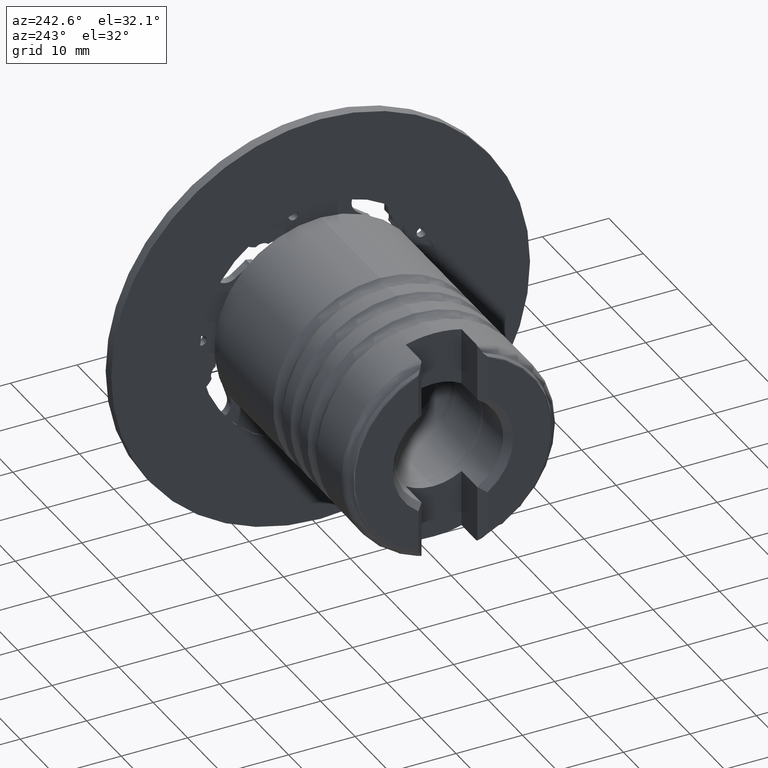
[diagram: clean part render]
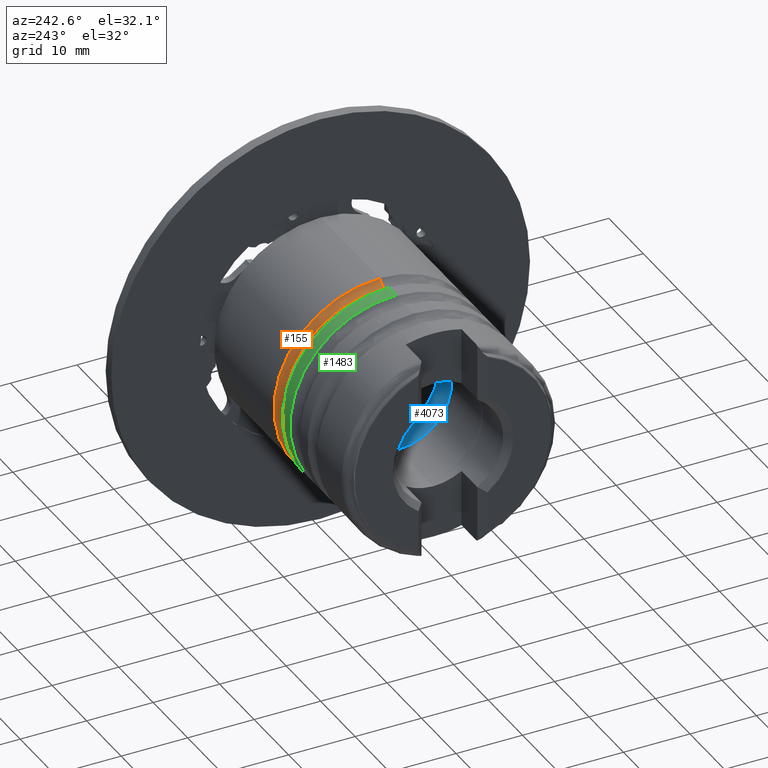
[diagram: same view with three faces highlighted in distinct colors, each labeled with its STEP entity id]
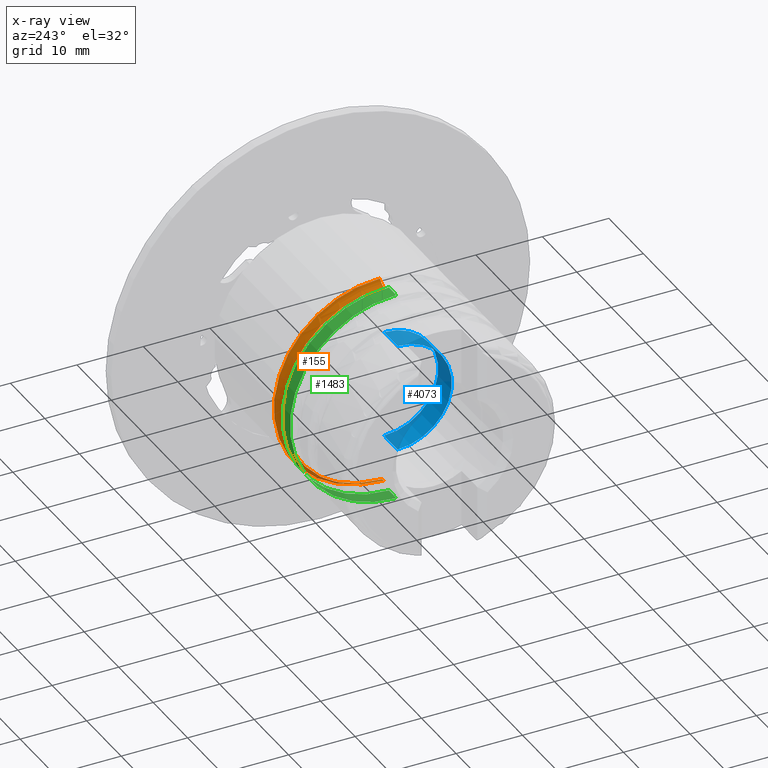
[diagram: x-ray of the same camera — body ghosted, the three highlighted faces saturated]
A machine part, auxiliary view with three faces highlighted in distinct colors.
The next image is the same camera in x-ray (body ghosted, the three faces saturated) — at least one of them is partly hidden behind the body in this view.
Their STEP definitions:

[orange] entity #155 — the highlighted toroidal blend (fillet) surface has major radius 16.75 mm and minor (blend) radius 1.5 mm.
#31 = DIRECTION ( 'NONE',  ( 0.0000000000000000000, -1.000000000000000000, 0.0000000000000000000 ) ) ;
#61 = ORIENTED_EDGE ( 'NONE', *, *, #4913, .T. ) ;
#103 = CARTESIAN_POINT ( 'NONE',  ( -19.79994866000000542, 2.051283388571816098E-15, -16.74999999999999289 ) ) ;
#155 = ADVANCED_FACE ( 'NONE', ( #1142 ), #6532, .F. ) ;
#189 = CARTESIAN_POINT ( 'NONE',  ( -18.55601876177602350, 1.948629171584465018E-15, -15.91176470588235503 ) ) ;
#216 = CARTESIAN_POINT ( 'NONE',  ( -19.79994866000000542, 0.0000000000000000000, 0.0000000000000000000 ) ) ;
#646 = ORIENTED_EDGE ( 'NONE', *, *, #1497, .F. ) ;
#975 = AXIS2_PLACEMENT_3D ( 'NONE', #216, #5013, #4440 ) ;
#1142 = FACE_OUTER_BOUND ( 'NONE', #5001, .T. ) ;
#1204 = EDGE_CURVE ( 'NONE', #3771, #2167, #2298, .T. ) ;
#1216 = CARTESIAN_POINT ( 'NONE',  ( -19.79994866000000542, 0.0000000000000000000, 0.0000000000000000000 ) ) ;
#1497 = EDGE_CURVE ( 'NONE', #7372, #2328, #4864, .T. ) ;
#1773 = DIRECTION ( 'NONE',  ( -1.000000000000000000, -0.0000000000000000000, -0.0000000000000000000 ) ) ;
#2158 = AXIS2_PLACEMENT_3D ( 'NONE', #2934, #31, #7193 ) ;
#2167 = VERTEX_POINT ( 'NONE', #189 ) ;
#2298 = CIRCLE ( 'NONE', #2806, 15.91176470588235503 ) ;
#2328 = VERTEX_POINT ( 'NONE', #7696 ) ;
#2806 = AXIS2_PLACEMENT_3D ( 'NONE', #4464, #6795, #3197 ) ;
#2934 = CARTESIAN_POINT ( 'NONE',  ( -19.79994866000000542, 0.0000000000000000000, 16.74999999999999289 ) ) ;
#3190 = AXIS2_PLACEMENT_3D ( 'NONE', #103, #5941, #6703 ) ;
#3197 = DIRECTION ( 'NONE',  ( 0.0000000000000000000, 0.0000000000000000000, 1.000000000000000000 ) ) ;
#3349 = EDGE_CURVE ( 'NONE', #2328, #2167, #5672, .T. ) ;
#3611 = ORIENTED_EDGE ( 'NONE', *, *, #1204, .T. ) ;
#3771 = VERTEX_POINT ( 'NONE', #5895 ) ;
#4440 = DIRECTION ( 'NONE',  ( 0.0000000000000000000, 0.0000000000000000000, 1.000000000000000000 ) ) ;
#4464 = CARTESIAN_POINT ( 'NONE',  ( -18.55601876177602350, 0.0000000000000000000, 0.0000000000000000000 ) ) ;
#4803 = CIRCLE ( 'NONE', #2158, 1.500000000000001332 ) ;
#4864 = CIRCLE ( 'NONE', #5814, 15.24999999999999289 ) ;
#4913 = EDGE_CURVE ( 'NONE', #7372, #3771, #4803, .T. ) ;
#4917 = DIRECTION ( 'NONE',  ( 0.0000000000000000000, 0.0000000000000000000, 1.000000000000000000 ) ) ;
#5001 = EDGE_LOOP ( 'NONE', ( #646, #61, #3611, #6960 ) ) ;
#5013 = DIRECTION ( 'NONE',  ( -1.000000000000000000, -0.0000000000000000000, -0.0000000000000000000 ) ) ;
#5672 = CIRCLE ( 'NONE', #3190, 1.500000000000001332 ) ;
#5814 = AXIS2_PLACEMENT_3D ( 'NONE', #1216, #1773, #4917 ) ;
#5895 = CARTESIAN_POINT ( 'NONE',  ( -18.55601876177602350, 0.0000000000000000000, 15.91176470588235503 ) ) ;
#5941 = DIRECTION ( 'NONE',  ( -0.0000000000000000000, 1.000000000000000000, 1.224646799147353207E-16 ) ) ;
#6329 = CARTESIAN_POINT ( 'NONE',  ( -19.79994866000000542, 0.0000000000000000000, 15.24999999999999289 ) ) ;
#6532 = TOROIDAL_SURFACE ( 'NONE', #975, 16.74999999999999289, 1.500000000000001554 ) ;
#6703 = DIRECTION ( 'NONE',  ( 0.0000000000000000000, -1.224646799147354440E-16, 1.000000000000000000 ) ) ;
#6795 = DIRECTION ( 'NONE',  ( -1.000000000000000000, -0.0000000000000000000, -0.0000000000000000000 ) ) ;
#6960 = ORIENTED_EDGE ( 'NONE', *, *, #3349, .F. ) ;
#7193 = DIRECTION ( 'NONE',  ( 0.0000000000000000000, 0.0000000000000000000, -1.000000000000000000 ) ) ;
#7372 = VERTEX_POINT ( 'NONE', #6329 ) ;
#7696 = CARTESIAN_POINT ( 'NONE',  ( -19.79994866000000542, 1.867586368699712587E-15, -15.24999999999999289 ) ) ;

[blue] entity #4073 — the highlighted cylindrical surface (partial cylindrical patch) has radius 8.15 mm, axis along (1, 0, 0).
#104 = CARTESIAN_POINT ( 'NONE',  ( 0.0000000000000000000, 9.980871413050927985E-16, 8.149999999999998579 ) ) ;
#283 = CARTESIAN_POINT ( 'NONE',  ( -23.73264320164236452, 0.0000000000000000000, 0.0000000000000000000 ) ) ;
#378 = EDGE_CURVE ( 'NONE', #6456, #1488, #2202, .T. ) ;
#450 = CARTESIAN_POINT ( 'NONE',  ( -19.79994866000000897, 9.980871413050927985E-16, 8.149999999999998579 ) ) ;
#500 = CARTESIAN_POINT ( 'NONE',  ( -23.73264320164236452, 9.980871413050927985E-16, 8.149999999999998579 ) ) ;
#726 = AXIS2_PLACEMENT_3D ( 'NONE', #283, #2719, #7585 ) ;
#1486 = ORIENTED_EDGE ( 'NONE', *, *, #6676, .T. ) ;
#1488 = VERTEX_POINT ( 'NONE', #4266 ) ;
#1910 = DIRECTION ( 'NONE',  ( 1.000000000000000000, -0.0000000000000000000, -0.0000000000000000000 ) ) ;
#1998 = DIRECTION ( 'NONE',  ( 1.000000000000000000, -0.0000000000000000000, -0.0000000000000000000 ) ) ;
#2095 = VECTOR ( 'NONE', #1910, 1000.000000000000000 ) ;
#2202 = CIRCLE ( 'NONE', #726, 8.149999999999998579 ) ;
#2326 = DIRECTION ( 'NONE',  ( 0.0000000000000000000, 0.0000000000000000000, -1.000000000000000000 ) ) ;
#2719 = DIRECTION ( 'NONE',  ( 1.000000000000000000, -0.0000000000000000000, -0.0000000000000000000 ) ) ;
#2793 = DIRECTION ( 'NONE',  ( 1.000000000000000000, -0.0000000000000000000, -0.0000000000000000000 ) ) ;
#3002 = FACE_OUTER_BOUND ( 'NONE', #3938, .T. ) ;
#3099 = VECTOR ( 'NONE', #2793, 1000.000000000000000 ) ;
#3194 = CYLINDRICAL_SURFACE ( 'NONE', #5223, 8.149999999999998579 ) ;
#3230 = CARTESIAN_POINT ( 'NONE',  ( -19.79994866000000897, 0.0000000000000000000, 0.0000000000000000000 ) ) ;
#3515 = CARTESIAN_POINT ( 'NONE',  ( 0.0000000000000000000, 0.0000000000000000000, -8.149999999999998579 ) ) ;
#3529 = CARTESIAN_POINT ( 'NONE',  ( 0.0000000000000000000, 0.0000000000000000000, 0.0000000000000000000 ) ) ;
#3836 = VERTEX_POINT ( 'NONE', #450 ) ;
#3888 = CIRCLE ( 'NONE', #7713, 8.149999999999998579 ) ;
#3938 = EDGE_LOOP ( 'NONE', ( #6811, #1486, #6971, #5633 ) ) ;
#3966 = VERTEX_POINT ( 'NONE', #5815 ) ;
#4073 = ADVANCED_FACE ( 'NONE', ( #3002 ), #3194, .F. ) ;
#4100 = LINE ( 'NONE', #104, #2095 ) ;
#4266 = CARTESIAN_POINT ( 'NONE',  ( -23.73264320164236452, 0.0000000000000000000, -8.149999999999998579 ) ) ;
#4793 = EDGE_CURVE ( 'NONE', #1488, #3966, #6295, .T. ) ;
#5091 = DIRECTION ( 'NONE',  ( 0.0000000000000000000, 0.0000000000000000000, -1.000000000000000000 ) ) ;
#5223 = AXIS2_PLACEMENT_3D ( 'NONE', #3529, #7752, #2326 ) ;
#5633 = ORIENTED_EDGE ( 'NONE', *, *, #4793, .F. ) ;
#5815 = CARTESIAN_POINT ( 'NONE',  ( -19.79994866000000897, 0.0000000000000000000, -8.149999999999998579 ) ) ;
#6295 = LINE ( 'NONE', #3515, #3099 ) ;
#6456 = VERTEX_POINT ( 'NONE', #500 ) ;
#6676 = EDGE_CURVE ( 'NONE', #6456, #3836, #4100, .T. ) ;
#6811 = ORIENTED_EDGE ( 'NONE', *, *, #378, .F. ) ;
#6971 = ORIENTED_EDGE ( 'NONE', *, *, #7420, .T. ) ;
#7420 = EDGE_CURVE ( 'NONE', #3836, #3966, #3888, .T. ) ;
#7585 = DIRECTION ( 'NONE',  ( 0.0000000000000000000, 0.0000000000000000000, -1.000000000000000000 ) ) ;
#7713 = AXIS2_PLACEMENT_3D ( 'NONE', #3230, #1998, #5091 ) ;
#7752 = DIRECTION ( 'NONE',  ( 1.000000000000000000, -0.0000000000000000000, -0.0000000000000000000 ) ) ;

[green] entity #1483 — the highlighted cylindrical surface (partial cylindrical patch) has radius 16 mm, axis along (1, 0, 0).
#224 = LINE ( 'NONE', #5283, #7000 ) ;
#429 = EDGE_CURVE ( 'NONE', #5868, #6412, #2875, .T. ) ;
#573 = VERTEX_POINT ( 'NONE', #4211 ) ;
#834 = CARTESIAN_POINT ( 'NONE',  ( -21.20973587798717475, 0.0000000000000000000, 16.00000000000000000 ) ) ;
#842 = ORIENTED_EDGE ( 'NONE', *, *, #429, .F. ) ;
#961 = DIRECTION ( 'NONE',  ( -1.000000000000000000, -0.0000000000000000000, -0.0000000000000000000 ) ) ;
#1425 = VECTOR ( 'NONE', #2993, 1000.000000000000000 ) ;
#1483 = ADVANCED_FACE ( 'NONE', ( #3522 ), #6346, .T. ) ;
#1555 = DIRECTION ( 'NONE',  ( 0.0000000000000000000, 0.0000000000000000000, 1.000000000000000000 ) ) ;
#1958 = EDGE_CURVE ( 'NONE', #5868, #6804, #7087, .T. ) ;
#2239 = CARTESIAN_POINT ( 'NONE',  ( -23.39016144201283609, 1.959434878635764737E-15, 15.99999999999999645 ) ) ;
#2765 = ORIENTED_EDGE ( 'NONE', *, *, #6330, .F. ) ;
#2875 = CIRCLE ( 'NONE', #3159, 15.99999999999999645 ) ;
#2993 = DIRECTION ( 'NONE',  ( 1.000000000000000000, -0.0000000000000000000, -0.0000000000000000000 ) ) ;
#3159 = AXIS2_PLACEMENT_3D ( 'NONE', #6969, #961, #1555 ) ;
#3507 = EDGE_CURVE ( 'NONE', #6804, #573, #7738, .T. ) ;
#3522 = FACE_OUTER_BOUND ( 'NONE', #7432, .T. ) ;
#3563 = DIRECTION ( 'NONE',  ( 0.0000000000000000000, 0.0000000000000000000, -1.000000000000000000 ) ) ;
#3739 = AXIS2_PLACEMENT_3D ( 'NONE', #6735, #7391, #3741 ) ;
#3741 = DIRECTION ( 'NONE',  ( 0.0000000000000000000, 0.0000000000000000000, 1.000000000000000000 ) ) ;
#4211 = CARTESIAN_POINT ( 'NONE',  ( -21.20973587798717475, 1.959434878635765131E-15, -16.00000000000000000 ) ) ;
#4465 = ORIENTED_EDGE ( 'NONE', *, *, #3507, .T. ) ;
#5103 = AXIS2_PLACEMENT_3D ( 'NONE', #6481, #7730, #3563 ) ;
#5283 = CARTESIAN_POINT ( 'NONE',  ( 0.0000000000000000000, 0.0000000000000000000, -15.99999999999999645 ) ) ;
#5868 = VERTEX_POINT ( 'NONE', #2239 ) ;
#6330 = EDGE_CURVE ( 'NONE', #6412, #573, #224, .T. ) ;
#6346 = CYLINDRICAL_SURFACE ( 'NONE', #5103, 15.99999999999999645 ) ;
#6412 = VERTEX_POINT ( 'NONE', #6507 ) ;
#6481 = CARTESIAN_POINT ( 'NONE',  ( 0.0000000000000000000, 0.0000000000000000000, 0.0000000000000000000 ) ) ;
#6507 = CARTESIAN_POINT ( 'NONE',  ( -23.39016144201283609, 0.0000000000000000000, -15.99999999999999645 ) ) ;
#6547 = CARTESIAN_POINT ( 'NONE',  ( 0.0000000000000000000, 1.959434878635764737E-15, 15.99999999999999645 ) ) ;
#6689 = ORIENTED_EDGE ( 'NONE', *, *, #1958, .T. ) ;
#6735 = CARTESIAN_POINT ( 'NONE',  ( -21.20973587798717475, 0.0000000000000000000, 0.0000000000000000000 ) ) ;
#6804 = VERTEX_POINT ( 'NONE', #834 ) ;
#6969 = CARTESIAN_POINT ( 'NONE',  ( -23.39016144201283609, 0.0000000000000000000, 0.0000000000000000000 ) ) ;
#7000 = VECTOR ( 'NONE', #7015, 1000.000000000000000 ) ;
#7015 = DIRECTION ( 'NONE',  ( 1.000000000000000000, -0.0000000000000000000, -0.0000000000000000000 ) ) ;
#7087 = LINE ( 'NONE', #6547, #1425 ) ;
#7391 = DIRECTION ( 'NONE',  ( -1.000000000000000000, -0.0000000000000000000, -0.0000000000000000000 ) ) ;
#7432 = EDGE_LOOP ( 'NONE', ( #842, #6689, #4465, #2765 ) ) ;
#7730 = DIRECTION ( 'NONE',  ( 1.000000000000000000, -0.0000000000000000000, -0.0000000000000000000 ) ) ;
#7738 = CIRCLE ( 'NONE', #3739, 16.00000000000000000 ) ;